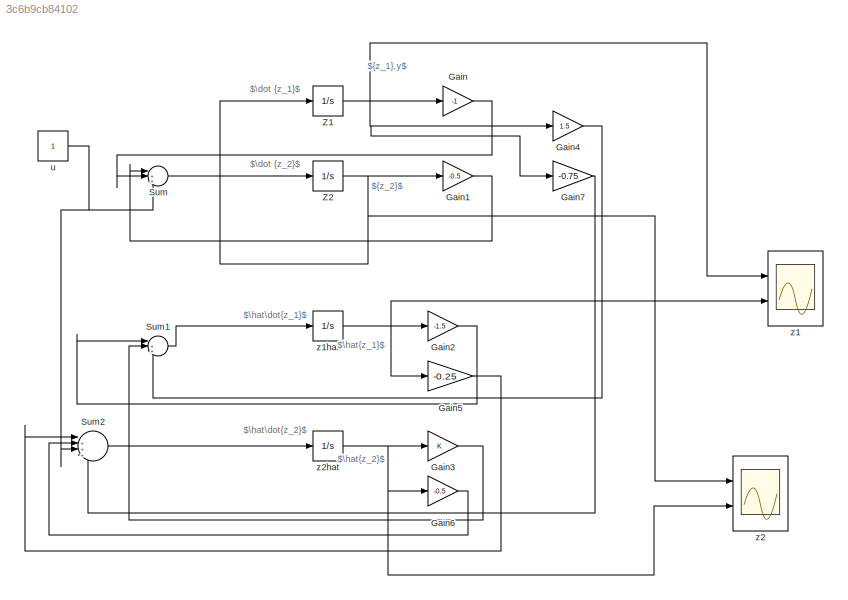
MODEL slx_3c6b9cb84102
KIND model
CONFIG AbsTol = auto
CONFIG EnableMultiTasking = off
CONFIG FixedStep = auto
CONFIG MaxStep = auto
CONFIG MinStep = auto
CONFIG RelTol = 1e-3
CONFIG SampleTimeConstraint = Unconstrained
CONFIG SolverName = VariableStepAuto
CONFIG StartTime = 0.0
CONFIG StopTime = 30.0
BLOCK [Gain] Gain
  Gain = -1
BLOCK [Gain] Gain1
  Gain = -0.5
BLOCK [Gain] Gain2
  Gain = -1.5
BLOCK [Gain] Gain3
BLOCK [Gain] Gain4
  Gain = 1.5
BLOCK [Gain] Gain5
  Gain = -0.25
BLOCK [Gain] Gain6
  Gain = -0.5
BLOCK [Gain] Gain7
  Gain = -0.75
BLOCK [Sum] Sum
  Inputs = |+++
  Ports = [3, 1]
BLOCK [Sum] Sum1
  Inputs = |+++
  Ports = [3, 1]
BLOCK [Sum] Sum2
  Inputs = |++++
  Ports = [4, 1]
BLOCK [Integrator] Z1
  Ports = [1, 1]
BLOCK [Integrator] Z2
  Ports = [1, 1]
BLOCK [Constant] u
BLOCK [Scope] z1
  Floating = off
  NumInputPorts = 2
  Ports = [2]
  ScopeSpecificationString = Simulink.scopes.TimeScopeBlockCfg('CurrentConfiguration', extmgr.ConfigurationSet(extmgr.Configuration('Core','General UI',true),extmgr.Configuration('Core','Source UI',true),extmgr.Configuration('Sources','WiredSimulink',true),extmgr.Configuration('Visuals','Time Domain',true,'SerializedDisplays',{struct('MinYLimReal','-0.19596','MaxYLimReal','1.7636','YLabelReal','','MinYLimMag','0.00000','MaxYL...<+1484ch>
BLOCK [Integrator] z1hat
  Ports = [1, 1]
BLOCK [Scope] z2
  Floating = off
  NumInputPorts = 2
  Ports = [2]
  ScopeSpecificationString = Simulink.scopes.TimeScopeBlockCfg('CurrentConfiguration', extmgr.ConfigurationSet(extmgr.Configuration('Core','General UI',true),extmgr.Configuration('Core','Source UI',true),extmgr.Configuration('Sources','WiredSimulink',true,'DataLoggingVariableName','ScopeData1'),extmgr.Configuration('Visuals','Time Domain',true,'SerializedDisplays',{struct('MinYLimReal','-0.50737','MaxYLimReal','1.40513','YLab...<+1526ch>
BLOCK [Integrator] z2hat
  InitialCondition = 1
  Ports = [1, 1]
ANNOTATION (root): $\dot {z_1}$
ANNOTATION (root): $\dot {z_2}$
ANNOTATION (root): $\hat\dot{z_1}$
ANNOTATION (root): $\hat\dot{z_2}$
ANNOTATION (root): $\hat{z_1}$
ANNOTATION (root): $\hat{z_2}$
ANNOTATION (root): ${z_1},y$
ANNOTATION (root): ${z_2}$
LINE Gain1:1 -> Sum:1
LINE Gain2:1 -> Sum1:1
LINE Gain3:1 -> Sum1:2
LINE Gain4:1 -> Sum1:3
LINE Gain5:1 -> Sum2:1
LINE Gain6:1 -> Sum2:2
LINE Gain7:1 -> Sum2:4
LINE Gain:1 -> Sum:2
LINE Sum1:1 -> z1hat:1
LINE Sum2:1 -> z2hat:1
LINE Sum:1 -> Z2:1
NET Z1:1 -> Gain4:1, Gain7:1, Gain:1, z1:1
NET Z2:1 -> Gain1:1, Z1:1, z2:1
NET u:1 -> Sum2:3, Sum:3
NET z1hat:1 -> Gain2:1, Gain5:1, z1:2
NET z2hat:1 -> Gain3:1, Gain6:1, z2:2
note: NET lines group one-source signal fan-out (src -> all destinations, sorted); 1:1 wires keep LINE
